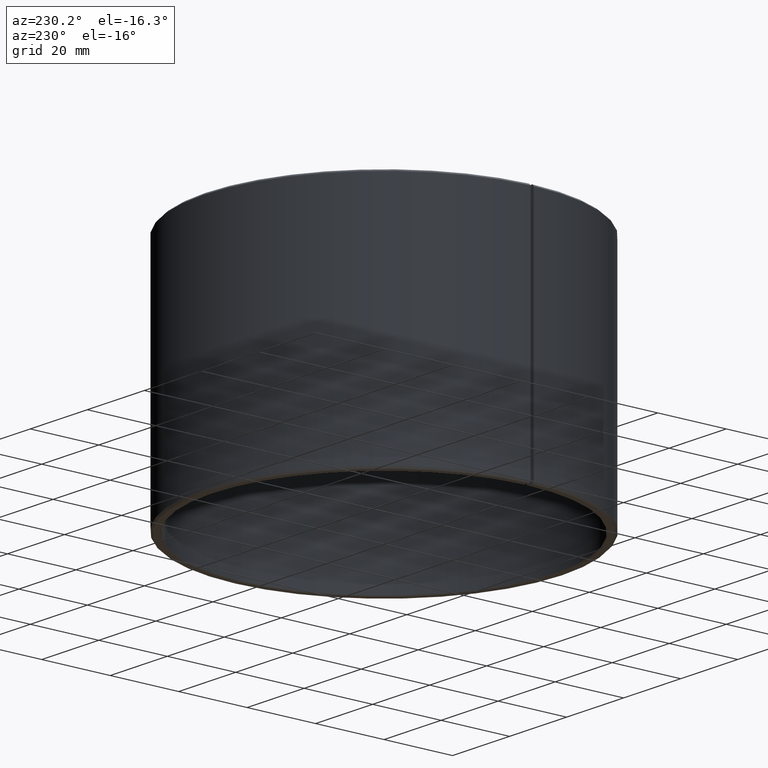
[diagram: clean part render]
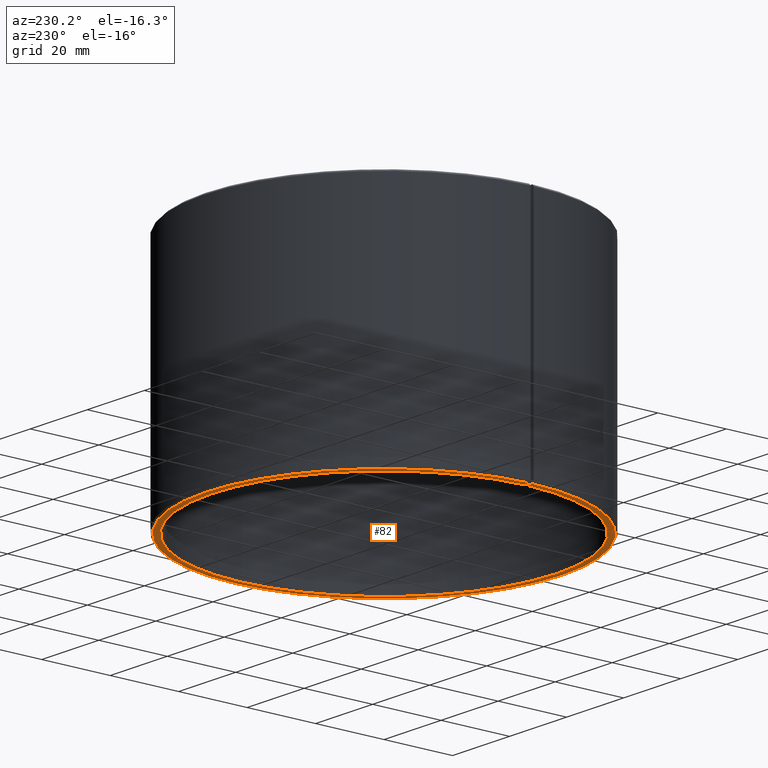
[diagram: same view with one face highlighted and labeled with its STEP entity id]
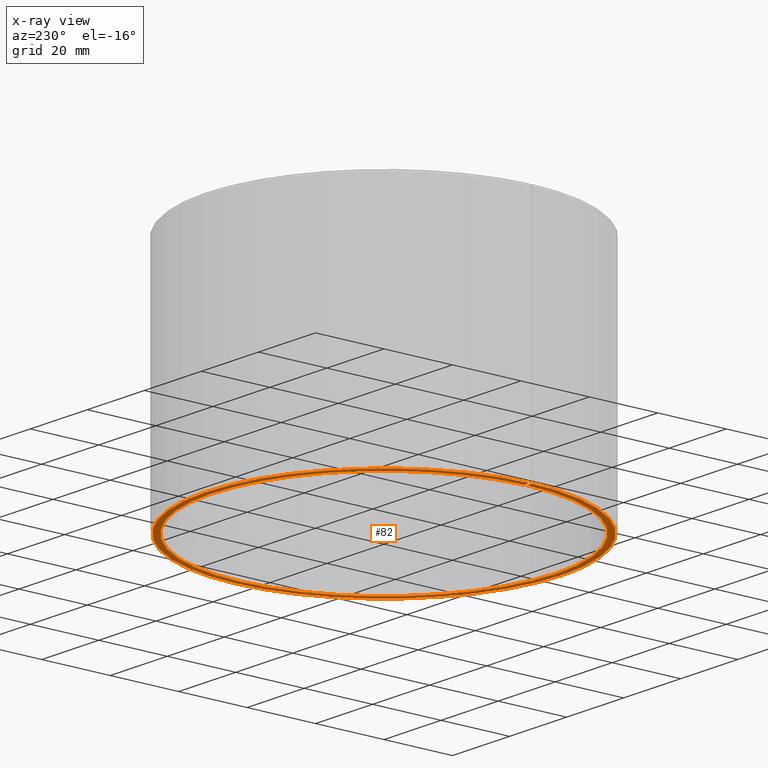
[diagram: x-ray of the same camera — body ghosted, the highlighted face saturated]
A machine part, auxiliary view. The second image highlights one B-rep face of the part: STEP entity #82.
The next image is the same camera in x-ray: the body ghosted, the highlighted face saturated — about 0% of this face is hidden behind the body in this view.
In plain terms, the highlighted planar face has unit normal (-0, 0, -1).
Its self-contained STEP definition (entity closure, byte-faithful):
#82=ADVANCED_FACE('',(#106),#107,.T.);
#106=FACE_OUTER_BOUND('',#138,.T.);
#107=PLANE('',#139);
#138=EDGE_LOOP('',(#205,#206,#207,#208,#209,#210));
#139=AXIS2_PLACEMENT_3D('',#211,#212,#213);
#205=ORIENTED_EDGE('',*,*,#303,.T.);
#206=ORIENTED_EDGE('',*,*,#304,.F.);
#207=ORIENTED_EDGE('',*,*,#296,.F.);
#208=ORIENTED_EDGE('',*,*,#305,.F.);
#209=ORIENTED_EDGE('',*,*,#300,.T.);
#210=ORIENTED_EDGE('',*,*,#299,.T.);
#211=CARTESIAN_POINT('',(-51.1,-1.79914592205437E-014,3.38253746482177E-014));
#212=DIRECTION('',(-6.44013415576267E-016,6.09939603923743E-016,-1.0));
#213=DIRECTION('',(1.0,3.21624529935328E-016,-6.44013415576267E-016));
#296=EDGE_CURVE('',#346,#344,#348,.T.);
#299=EDGE_CURVE('',#349,#351,#353,.T.);
#300=EDGE_CURVE('',#354,#349,#355,.T.);
#303=EDGE_CURVE('',#351,#359,#360,.T.);
#304=EDGE_CURVE('',#344,#359,#361,.T.);
#305=EDGE_CURVE('',#354,#346,#362,.T.);
#344=VERTEX_POINT('',#414);
#346=VERTEX_POINT('',#417);
#348=CIRCLE('',#420,52.0);
#349=VERTEX_POINT('',#421);
#351=VERTEX_POINT('',#424);
#353=CIRCLE('',#427,50.2);
#354=VERTEX_POINT('',#428);
#355=CIRCLE('',#429,50.2);
#359=VERTEX_POINT('',#434);
#360=LINE('',#435,#436);
#361=CIRCLE('',#437,52.0);
#362=LINE('',#438,#439);
#414=CARTESIAN_POINT('',(52.0,8.50245574069512E-015,-2.62984538891932E-014));
#417=CARTESIAN_POINT('',(-52.0,-1.84470527059097E-014,3.44049867222363E-014));
#420=AXIS2_PLACEMENT_3D('',#492,#493,#494);
#421=CARTESIAN_POINT('',(50.2,8.13478315966445E-015,-2.53107808140538E-014));
#424=CARTESIAN_POINT('',(-50.1923542968509,0.876110803151618,3.02880335438199E-014));
#427=AXIS2_PLACEMENT_3D('',#497,#498,#499);
#428=CARTESIAN_POINT('',(-50.2,-1.75358657351778E-014,3.32457625741991E-014));
#429=AXIS2_PLACEMENT_3D('',#500,#501,#502);
#434=CARTESIAN_POINT('',(-51.9920801481323,0.907525134738727,3.12947170365319E-014));
#435=CARTESIAN_POINT('',(-50.1923542968508,0.876110803151618,3.37824098636066E-014));
#436=VECTOR('',#507,10.0);
#437=AXIS2_PLACEMENT_3D('',#508,#509,#510);
#438=CARTESIAN_POINT('',(-50.2,-1.75358657351778E-014,3.32457625741991E-014));
#439=VECTOR('',#511,10.0);
#492=CARTESIAN_POINT('',(1.46352695293779E-015,-1.86916454536501E-015,2.24013171815854E-015));
#493=DIRECTION('',(5.48707263966372E-016,-6.09939603923743E-016,1.0));
#494=DIRECTION('',(-1.0,-3.21624529935327E-016,5.48707263966372E-016));
#497=CARTESIAN_POINT('',(1.46352695293779E-015,-1.86916454536501E-015,2.24013171815854E-015));
#498=DIRECTION('',(5.48707263966372E-016,-6.09939603923743E-016,1.0));
#499=DIRECTION('',(-1.0,-3.21624529935327E-016,5.48707263966372E-016));
#500=CARTESIAN_POINT('',(1.46352695293779E-015,-1.86916454536501E-015,2.24013171815854E-015));
#501=DIRECTION('',(5.48707263966372E-016,-6.09939603923743E-016,1.0));
#502=DIRECTION('',(-1.0,-3.21624529935327E-016,5.48707263966372E-016));
#507=DIRECTION('',(-0.999847695156391,0.0174524064372833,6.54574758672114E-016));
#508=CARTESIAN_POINT('',(1.46352695293779E-015,-1.86916454536501E-015,2.24013171815854E-015));
#509=DIRECTION('',(5.48707263966372E-016,-6.09939603923743E-016,1.0));
#510=DIRECTION('',(-1.0,-3.21624529935327E-016,5.48707263966372E-016));
#511=DIRECTION('',(-1.0,-3.21624529935328E-016,6.44013415576267E-016));